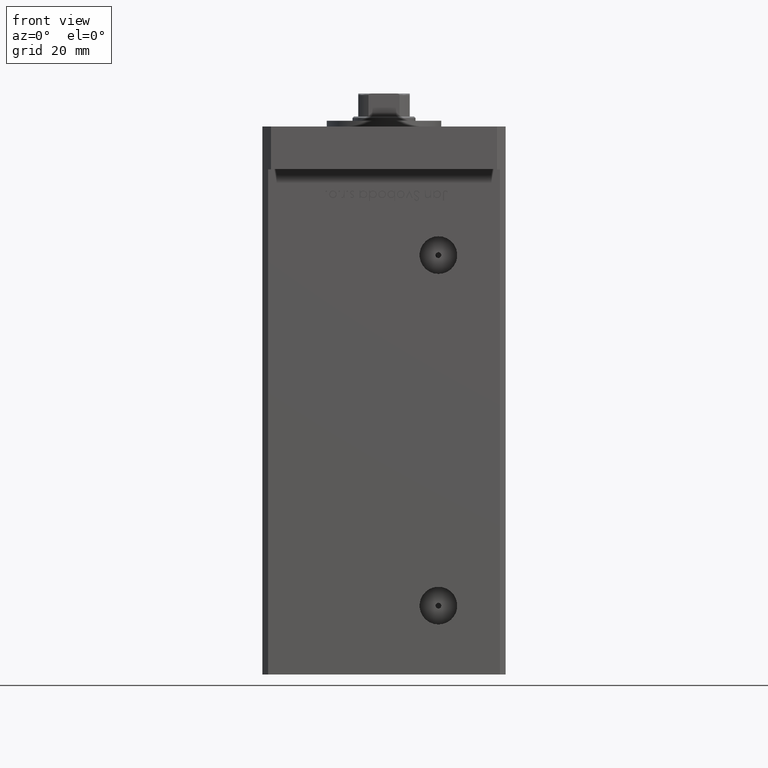
[diagram: clean part render]
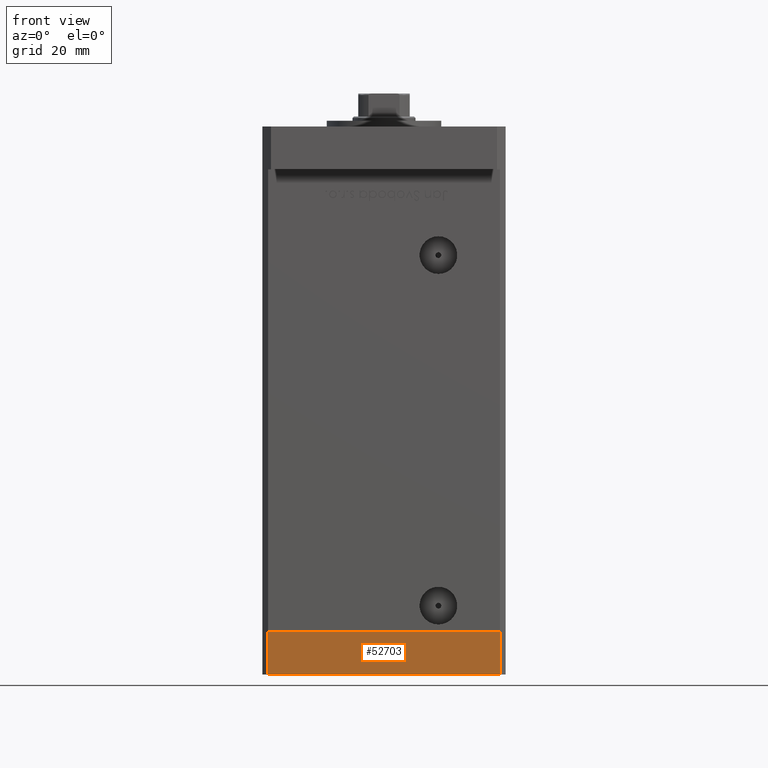
[diagram: same view with one face highlighted and labeled with its STEP entity id]
A machine part, front view. The second image highlights one B-rep face of the part: STEP entity #52703.
In plain terms, the highlighted planar face has unit normal (-0, -1, -0).
Its self-contained STEP definition (entity closure, byte-faithful):
#930 = VECTOR ( 'NONE', #32218, 1000.000000000000000 ) ;
#2312 = EDGE_CURVE ( 'NONE', #20852, #52384, #30801, .T. ) ;
#3932 = EDGE_CURVE ( 'NONE', #29673, #52384, #29720, .T. ) ;
#7918 = DIRECTION ( 'NONE',  ( 1.000000000000000000, 1.713307136767217096E-16, 0.000000000000000000 ) ) ;
#8376 = VECTOR ( 'NONE', #34045, 1000.000000000000000 ) ;
#8714 = EDGE_LOOP ( 'NONE', ( #26596, #30120, #52440, #31378 ) ) ;
#13731 = CARTESIAN_POINT ( 'NONE',  ( -40.49999999999999289, -37.50000000000002132, 0.000000000000000000 ) ) ;
#14456 = DIRECTION ( 'NONE',  ( 1.713307136767217096E-16, -1.000000000000000000, 0.000000000000000000 ) ) ;
#17976 = EDGE_CURVE ( 'NONE', #32768, #20852, #28420, .T. ) ;
#19661 = DIRECTION ( 'NONE',  ( 1.000000000000000000, 1.713307136767217096E-16, 0.000000000000000000 ) ) ;
#20852 = VERTEX_POINT ( 'NONE', #13731 ) ;
#24826 = EDGE_CURVE ( 'NONE', #32768, #29673, #30786, .T. ) ;
#25912 = CARTESIAN_POINT ( 'NONE',  ( -40.49999999999999289, -37.50000000000002132, -15.00000000000000000 ) ) ;
#26596 = ORIENTED_EDGE ( 'NONE', *, *, #2312, .F. ) ;
#28420 = LINE ( 'NONE', #28954, #930 ) ;
#28954 = CARTESIAN_POINT ( 'NONE',  ( -40.49999999999999289, -37.50000000000002132, -15.00000000000000000 ) ) ;
#29673 = VERTEX_POINT ( 'NONE', #39148 ) ;
#29720 = LINE ( 'NONE', #29972, #8376 ) ;
#29972 = CARTESIAN_POINT ( 'NONE',  ( 40.50000000000000000, -37.50000000000000711, -15.00000000000000000 ) ) ;
#30120 = ORIENTED_EDGE ( 'NONE', *, *, #17976, .F. ) ;
#30749 = CARTESIAN_POINT ( 'NONE',  ( -40.49999999999999289, -37.50000000000002132, -15.00000000000000000 ) ) ;
#30786 = LINE ( 'NONE', #25912, #39559 ) ;
#30801 = LINE ( 'NONE', #47315, #44769 ) ;
#31378 = ORIENTED_EDGE ( 'NONE', *, *, #3932, .T. ) ;
#31553 = PLANE ( 'NONE',  #48762 ) ;
#32218 = DIRECTION ( 'NONE',  ( 0.000000000000000000, 0.000000000000000000, 1.000000000000000000 ) ) ;
#32768 = VERTEX_POINT ( 'NONE', #30749 ) ;
#34045 = DIRECTION ( 'NONE',  ( 0.000000000000000000, 0.000000000000000000, 1.000000000000000000 ) ) ;
#39148 = CARTESIAN_POINT ( 'NONE',  ( 40.50000000000000000, -37.50000000000000711, -15.00000000000000000 ) ) ;
#39559 = VECTOR ( 'NONE', #47047, 1000.000000000000000 ) ;
#44018 = CARTESIAN_POINT ( 'NONE',  ( -40.49999999999999289, -37.50000000000002132, -15.00000000000000000 ) ) ;
#44769 = VECTOR ( 'NONE', #19661, 1000.000000000000000 ) ;
#47047 = DIRECTION ( 'NONE',  ( 1.000000000000000000, 1.713307136767217096E-16, 0.000000000000000000 ) ) ;
#47315 = CARTESIAN_POINT ( 'NONE',  ( -40.49999999999999289, -37.50000000000002132, 0.000000000000000000 ) ) ;
#48762 = AXIS2_PLACEMENT_3D ( 'NONE', #44018, #14456, #7918 ) ;
#51621 = FACE_OUTER_BOUND ( 'NONE', #8714, .T. ) ;
#51957 = CARTESIAN_POINT ( 'NONE',  ( 40.50000000000000000, -37.50000000000000711, 0.000000000000000000 ) ) ;
#52384 = VERTEX_POINT ( 'NONE', #51957 ) ;
#52440 = ORIENTED_EDGE ( 'NONE', *, *, #24826, .T. ) ;
#52703 = ADVANCED_FACE ( 'NONE', ( #51621 ), #31553, .T. ) ;